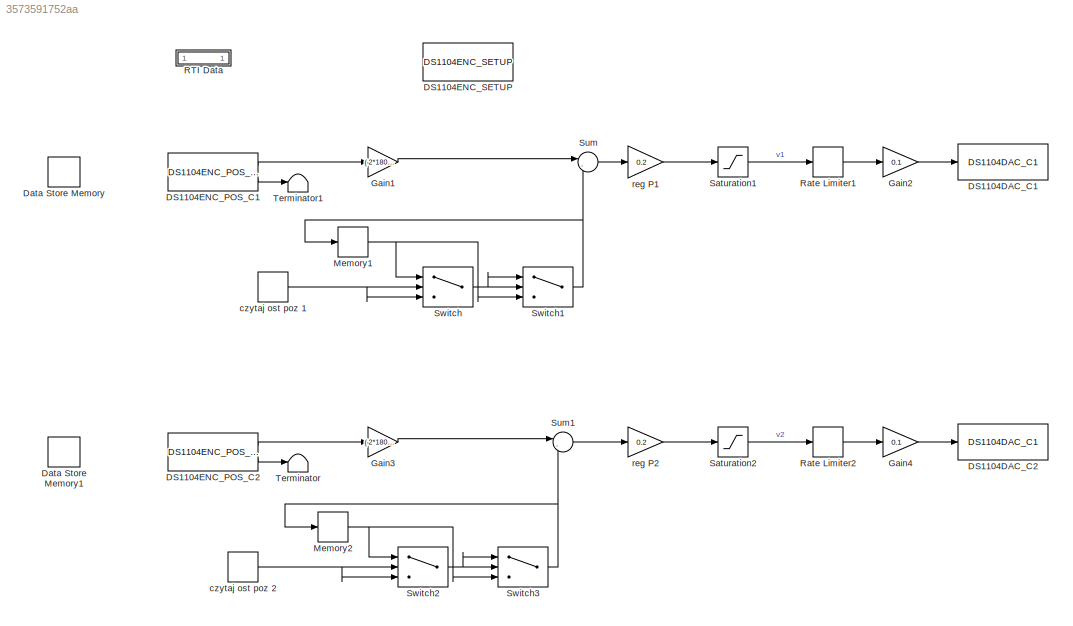
MODEL slx_3573591752aa
KIND model
CONFIG AbsTol = auto
CONFIG EnableMultiTasking = off
CONFIG FixedStep = 0.001
CONFIG MaxStep = auto
CONFIG MinStep = auto
CONFIG PostLoadFcn = , if any(exist('dsrtsu_mdlpostloadfcn', 'file') == [2, 3, 6]), try dsrtsu_mdlpostloadfcn('Execute', bdroot); catch fprintf('Error in PostLoadFcn (dsrtsu_mdlpostloadfcn) for model "%s":\n %s\n', bdroot, lasterr); end, end, \n
CONFIG RelTol = 1e-3
CONFIG SampleTimeConstraint = Unconstrained
CONFIG Solver = ode1
CONFIG SolverName = ode1
CONFIG StartTime = 0.0
CONFIG StopTime = Inf
BLOCK [Reference] DS1104DAC_C1  REF=rtilib1104/DS1104 MASTER PPC/DS1104DAC_C1
  Ports = [1]
  SourceBlock = rtilib1104/DS1104 MASTER PPC/DS1104DAC_C1
  SourceType = RTI
BLOCK [Reference] DS1104DAC_C2  REF=rtilib1104/DS1104 MASTER PPC/DS1104DAC_C1
  Ports = [1]
  SourceBlock = rtilib1104/DS1104 MASTER PPC/DS1104DAC_C1
  SourceType = RTI
BLOCK [Reference] DS1104ENC_POS_C1  REF=rtilib1104/DS1104 MASTER PPC/DS1104ENC_POS_C1
  Ports = [0, 2]
  SourceBlock = rtilib1104/DS1104 MASTER PPC/DS1104ENC_POS_C1
  SourceType = RTI
BLOCK [Reference] DS1104ENC_POS_C2  REF=rtilib1104/DS1104 MASTER PPC/DS1104ENC_POS_C1
  Ports = [0, 2]
  SourceBlock = rtilib1104/DS1104 MASTER PPC/DS1104ENC_POS_C1
  SourceType = RTI
BLOCK [Reference] DS1104ENC_SETUP  REF=rtilib1104/DS1104 MASTER PPC/DS1104ENC_SETUP
  Ports = []
  SourceBlock = rtilib1104/DS1104 MASTER PPC/DS1104ENC_SETUP
  SourceType = RTI
BLOCK [DataStoreMemory] Data Store Memory
  DataStoreName = WZ1
  ReadBeforeWriteMsg = warning
  ShowAdditionalParam = off
  WriteAfterReadMsg = warning
  WriteAfterWriteMsg = warning
BLOCK [DataStoreMemory] Data Store Memory1
  DataStoreName = WZ2
  ReadBeforeWriteMsg = warning
  ShowAdditionalParam = off
  WriteAfterReadMsg = warning
  WriteAfterWriteMsg = warning
BLOCK [Gain] Gain1
  Gain = (-2*180)/(500*128)
  OutDataTypeStr = Inherit: Inherit via internal rule
  ParamDataTypeStr = Inherit: Inherit via internal rule
  SaturateOnIntegerOverflow = off
BLOCK [Gain] Gain2
  Gain = 0.1
  OutDataTypeStr = Inherit: Inherit via internal rule
  ParamDataTypeStr = Inherit: Inherit via internal rule
  SaturateOnIntegerOverflow = off
BLOCK [Gain] Gain3
  Gain = (-2*180)/(500*128)
  OutDataTypeStr = Inherit: Inherit via internal rule
  ParamDataTypeStr = Inherit: Inherit via internal rule
  SaturateOnIntegerOverflow = off
BLOCK [Gain] Gain4
  Gain = 0.1
  OutDataTypeStr = Inherit: Inherit via internal rule
  ParamDataTypeStr = Inherit: Inherit via internal rule
  SaturateOnIntegerOverflow = off
BLOCK [Memory] Memory1
BLOCK [Memory] Memory2
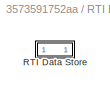
BLOCK [SubSystem] RTI Data
  CopyFcn = if exist('rtidc'), try,  rtidc('DataHostBlockClbCopy', gcbh); catch, disp(['Warning: ''CopyFcn'' for RTI Data block failed: ' lasterr]); end, end,
  DeleteFcn = if exist('rtidc'), try,  rtidc('DataHostBlockClbDelete', gcbh); catch, disp(['Warning: ''DeleteFcn'' for RTI Data block failed: ' lasterr]); end, end,
  LoadFcn = if exist('rtidc'), try,  rtidc('DataHostBlockClbLoad', gcbh); catch, disp(['Warning: ''LoadFcn'' for RTI Data block failed: ' lasterr]); end, end,
  ModelCloseFcn = if exist('rtidc'), try,  rtidc('DataHostBlockClbModelClose', gcbh); catch, disp(['Warning: ''ModelCloseFcn'' for RTI Data block failed: ' lasterr]); end, end,
  NameChangeFcn = if exist('rtidc'), try,  rtidc('DataHostBlockClbNameChange', gcbh); catch, disp(['Warning: ''NameChangeFcn'' for RTI Data block failed: ' lasterr]); end, end,
  Ports = []
  PostSaveFcn = if exist('rtidc'), try,  rtidc('DataHostBlockClbPostSave', gcbh); catch, disp(['Warning: ''PostSaveFcn'' for RTI Data block failed: ' lasterr]); end, end,
  PreSaveFcn = if exist('rtidc'), try,  rtidc('DataHostBlockClbPreSave', gcbh); catch, disp(['Warning: ''PreSaveFcn'' for RTI Data block failed: ' lasterr]); end, end,
  RequestExecContextInheritance = off
  Tag = struct('RTIDataServer',struct('RTIDataServerVs','2','RTIModelDescription','struct(''main'',''SCARA'',''sub'','''',''isMp'',0)'))
  Variant = off
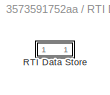
BLOCK [SubSystem] RTI Data/RTI Data Store
  Ports = []
  RequestExecContextInheritance = off
  Tag = struct('private',struct('version',struct('dsVer',uint32(2),'dsVerCreation',uint32(2),'RTI',struct('ver','7.7','type','RTI1104')),'access',struct('type','Model','isPerm',1,'created',['12-Mar-2018 08:49:56'],'modified',['12-Mar-2018 09:20:11'],'location','')),'public',struct('main',struct('data',[]),'sub',struct('name',{{'SCARA'}},'data',{{struct('TH',struct('thTaskInfo',struct('taskType',{'TIMER','...<+882ch>
  Variant = off
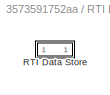
BLOCK [SubSystem] RTI Data/RTI Data Store/RTI Data Store
  Ports = []
  RequestExecContextInheritance = off
  Variant = off
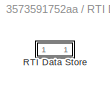
BLOCK [SubSystem] RTI Data/RTI Data Store/RTI Data Store/RTI Data Store
  Ports = []
  RequestExecContextInheritance = off
  Variant = off
BLOCK [SubSystem] RTI Data/RTI Data Store/RTI Data Store/RTI Data Store/RTI Data Store
  Ports = []
  RequestExecContextInheritance = off
  Variant = off
BLOCK [RateLimiter] Rate Limiter1
  FallingSlewLimit = -50
  RisingSlewLimit = 50
  SampleTimeMode = inherited
BLOCK [RateLimiter] Rate Limiter2
  FallingSlewLimit = -50
  RisingSlewLimit = 50
  SampleTimeMode = inherited
BLOCK [Saturate] Saturation1
  InputPortMap = u0
  LowerLimit = -3
  Ports = [1, 1]
  UpperLimit = 3
BLOCK [Saturate] Saturation2
  InputPortMap = u0
  LowerLimit = -3
  Ports = [1, 1]
  UpperLimit = 3
BLOCK [Sum] Sum
  IconShape = round
  InputSameDT = off
  Inputs = |-+
  OutDataTypeStr = Inherit: Inherit via internal rule
  Ports = [2, 1]
  SaturateOnIntegerOverflow = off
BLOCK [Sum] Sum1
  IconShape = round
  InputSameDT = off
  Inputs = |-+
  OutDataTypeStr = Inherit: Inherit via internal rule
  Ports = [2, 1]
  SaturateOnIntegerOverflow = off
BLOCK [Switch] Switch
  Criteria = u2 > Threshold
  InputSameDT = off
  SaturateOnIntegerOverflow = off
  Threshold = 180
BLOCK [Switch] Switch1
  InputSameDT = off
  SaturateOnIntegerOverflow = off
  Threshold = -180
BLOCK [Switch] Switch2
  Criteria = u2 > Threshold
  InputSameDT = off
  SaturateOnIntegerOverflow = off
  Threshold = 180
BLOCK [Switch] Switch3
  InputSameDT = off
  SaturateOnIntegerOverflow = off
  Threshold = -180
BLOCK [Terminator] Terminator
BLOCK [Terminator] Terminator1
BLOCK [DataStoreRead] czytaj ost poz 1
  DataStoreName = WZ1
  Ports = [0, 1]
BLOCK [DataStoreRead] czytaj ost poz 2
  DataStoreName = WZ2
  Ports = [0, 1]
BLOCK [Gain] reg P1
  Gain = 0.2
  OutDataTypeStr = Inherit: Inherit via internal rule
  ParamDataTypeStr = Inherit: Inherit via internal rule
  SaturateOnIntegerOverflow = off
BLOCK [Gain] reg P2
  Gain = 0.2
  OutDataTypeStr = Inherit: Inherit via internal rule
  ParamDataTypeStr = Inherit: Inherit via internal rule
  SaturateOnIntegerOverflow = off
LINE DS1104ENC_POS_C1:1 -> Gain1:1
LINE DS1104ENC_POS_C1:2 -> Terminator1:1
LINE DS1104ENC_POS_C2:1 -> Gain3:1
LINE DS1104ENC_POS_C2:2 -> Terminator:1
LINE Gain1:1 -> Sum:1
LINE Gain2:1 -> DS1104DAC_C1:1
LINE Gain3:1 -> Sum1:1
LINE Gain4:1 -> DS1104DAC_C2:1
NET Memory1:1 -> Switch1:3, Switch:1
NET Memory2:1 -> Switch2:1, Switch3:3
LINE Rate Limiter1:1 -> Gain2:1
LINE Rate Limiter2:1 -> Gain4:1
LINE Saturation1:1 -> Rate Limiter1:1
LINE Saturation2:1 -> Rate Limiter2:1
LINE Sum1:1 -> reg P2:1
LINE Sum:1 -> reg P1:1
NET Switch1:1 -> Memory1:1, Sum:2
NET Switch2:1 -> Switch3:1, Switch3:2
NET Switch3:1 -> Memory2:1, Sum1:2
NET Switch:1 -> Switch1:1, Switch1:2
NET czytaj ost poz 1:1 -> Switch:2, Switch:3
NET czytaj ost poz 2:1 -> Switch2:2, Switch2:3
LINE reg P1:1 -> Saturation1:1
LINE reg P2:1 -> Saturation2:1
note: NET lines group one-source signal fan-out (src -> all destinations, sorted); 1:1 wires keep LINE
